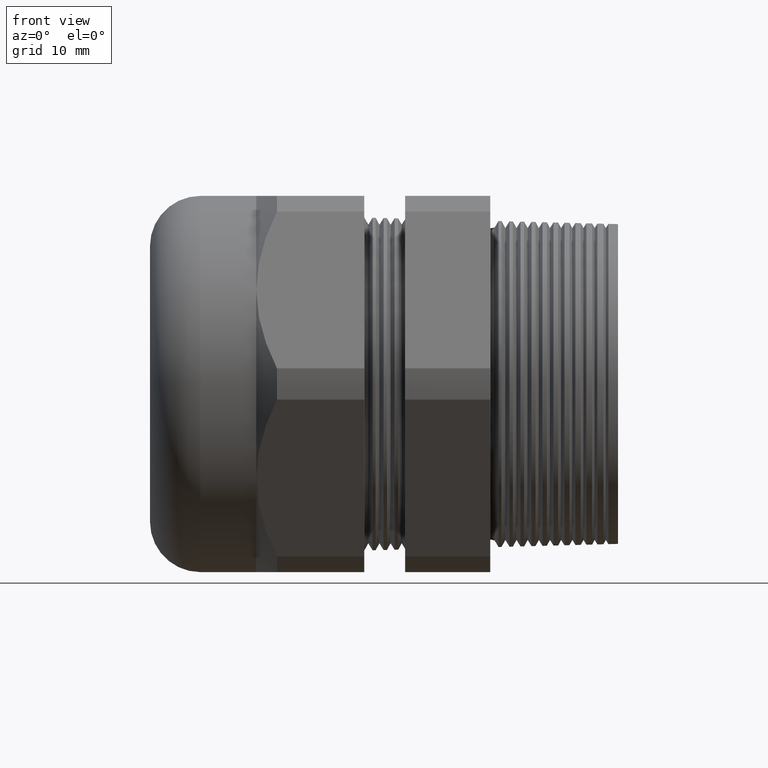
[diagram: clean part render]
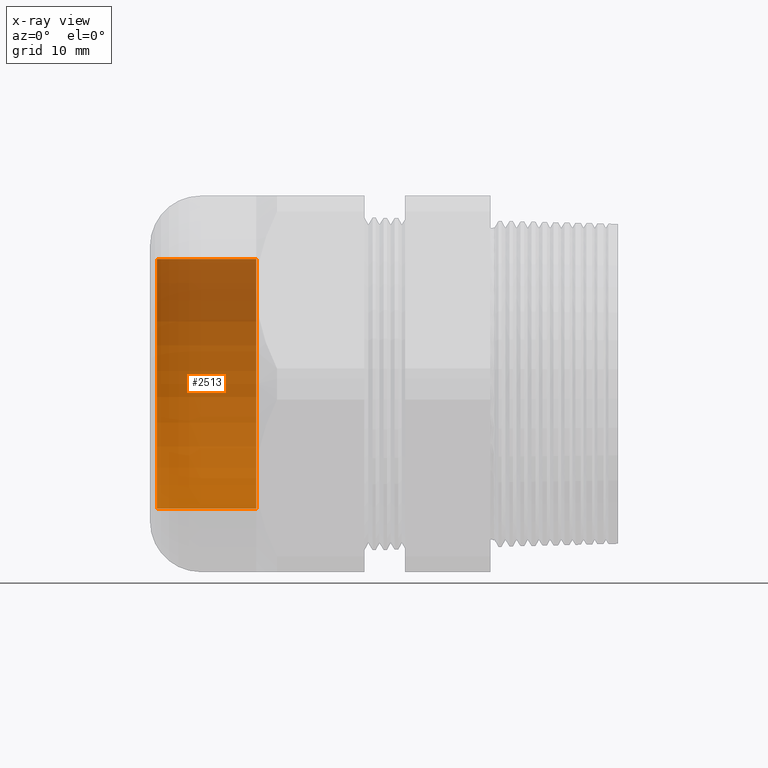
[diagram: x-ray — body ghosted, one internal face saturated and labeled with its STEP entity id]
A machine part, front view, then the same camera in x-ray: the body is ghosted and one INTERNAL B-rep face — a face not visible from any outside direction — is saturated and labeled: STEP entity #2513.
In plain terms, the highlighted cylindrical surface (partial cylindrical patch) has radius 17.6212 mm, axis along (1, 0, 0).
Its self-contained STEP definition (entity closure, byte-faithful):
#149 = DIRECTION ( 'NONE',  ( 0.0000000000000000000, 0.0000000000000000000, -1.000000000000000000 ) ) ;
#150 = DIRECTION ( 'NONE',  ( 1.000000000000000000, 0.0000000000000000000, 0.0000000000000000000 ) ) ;
#151 = CARTESIAN_POINT ( 'NONE',  ( -2.160999999999999600, 0.0000000000000000000, 0.0000000000000000000 ) ) ;
#152 = AXIS2_PLACEMENT_3D ( 'NONE', #151, #150, #149 ) ;
#153 = CIRCLE ( 'NONE', #152, 0.6937499999999999800 ) ;
#192 = DIRECTION ( 'NONE',  ( 1.000000000000000000, 0.0000000000000000000, 0.0000000000000000000 ) ) ;
#193 = VECTOR ( 'NONE', #192, 39.37007874015748100 ) ;
#194 = CARTESIAN_POINT ( 'NONE',  ( 0.0000000000000000000, 0.0000000000000000000, -0.6937499999999999800 ) ) ;
#195 = LINE ( 'NONE', #194, #193 ) ;
#196 = CARTESIAN_POINT ( 'NONE',  ( -1.609449999999999400, 0.0000000000000000000, -0.6937500000000000900 ) ) ;
#197 = DIRECTION ( 'NONE',  ( 0.0000000000000000000, 0.0000000000000000000, -1.000000000000000000 ) ) ;
#198 = DIRECTION ( 'NONE',  ( 1.000000000000000000, 0.0000000000000000000, 0.0000000000000000000 ) ) ;
#199 = CARTESIAN_POINT ( 'NONE',  ( -1.609449999999999400, 0.0000000000000000000, 0.0000000000000000000 ) ) ;
#200 = AXIS2_PLACEMENT_3D ( 'NONE', #199, #198, #197 ) ;
#201 = CIRCLE ( 'NONE', #200, 0.6937500000000000900 ) ;
#202 = CARTESIAN_POINT ( 'NONE',  ( -1.609449999999999400, 8.495987169084764700E-017, 0.6937500000000000900 ) ) ;
#203 = DIRECTION ( 'NONE',  ( 0.0000000000000000000, 0.0000000000000000000, -1.000000000000000000 ) ) ;
#204 = DIRECTION ( 'NONE',  ( 1.000000000000000000, 0.0000000000000000000, 0.0000000000000000000 ) ) ;
#205 = CARTESIAN_POINT ( 'NONE',  ( 0.0000000000000000000, 0.0000000000000000000, 0.0000000000000000000 ) ) ;
#206 = AXIS2_PLACEMENT_3D ( 'NONE', #205, #204, #203 ) ;
#207 = CYLINDRICAL_SURFACE ( 'NONE', #206, 0.6937499999999999800 ) ;
#208 = FACE_OUTER_BOUND ( 'NONE', #2448, .T. ) ;
#214 = CARTESIAN_POINT ( 'NONE',  ( -2.160999999999999600, 0.0000000000000000000, -0.6937499999999999800 ) ) ;
#2448 = EDGE_LOOP ( 'NONE', ( #2449, #2450, #2515, #2518 ) ) ;
#2449 = ORIENTED_EDGE ( 'NONE', *, *, #2509, .T. ) ;
#2450 = ORIENTED_EDGE ( 'NONE', *, *, #2451, .T. ) ;
#2451 = EDGE_CURVE ( 'NONE', #2458, #2514, #3417, .T. ) ;
#2458 = VERTEX_POINT ( 'NONE', #3400 ) ;
#2509 = EDGE_CURVE ( 'NONE', #2510, #2458, #153, .T. ) ;
#2510 = VERTEX_POINT ( 'NONE', #214 ) ;
#2513 = ADVANCED_FACE ( 'NONE', ( #208 ), #207, .T. ) ;
#2514 = VERTEX_POINT ( 'NONE', #202 ) ;
#2515 = ORIENTED_EDGE ( 'NONE', *, *, #2516, .F. ) ;
#2516 = EDGE_CURVE ( 'NONE', #2517, #2514, #201, .T. ) ;
#2517 = VERTEX_POINT ( 'NONE', #196 ) ;
#2518 = ORIENTED_EDGE ( 'NONE', *, *, #2519, .F. ) ;
#2519 = EDGE_CURVE ( 'NONE', #2510, #2517, #195, .T. ) ;
#3400 = CARTESIAN_POINT ( 'NONE',  ( -2.160999999999999600, 8.495987169084762200E-017, 0.6937499999999999800 ) ) ;
#3414 = DIRECTION ( 'NONE',  ( 1.000000000000000000, 0.0000000000000000000, 0.0000000000000000000 ) ) ;
#3415 = VECTOR ( 'NONE', #3414, 39.37007874015748100 ) ;
#3416 = CARTESIAN_POINT ( 'NONE',  ( 0.0000000000000000000, 8.495987169084762200E-017, 0.6937499999999999800 ) ) ;
#3417 = LINE ( 'NONE', #3416, #3415 ) ;